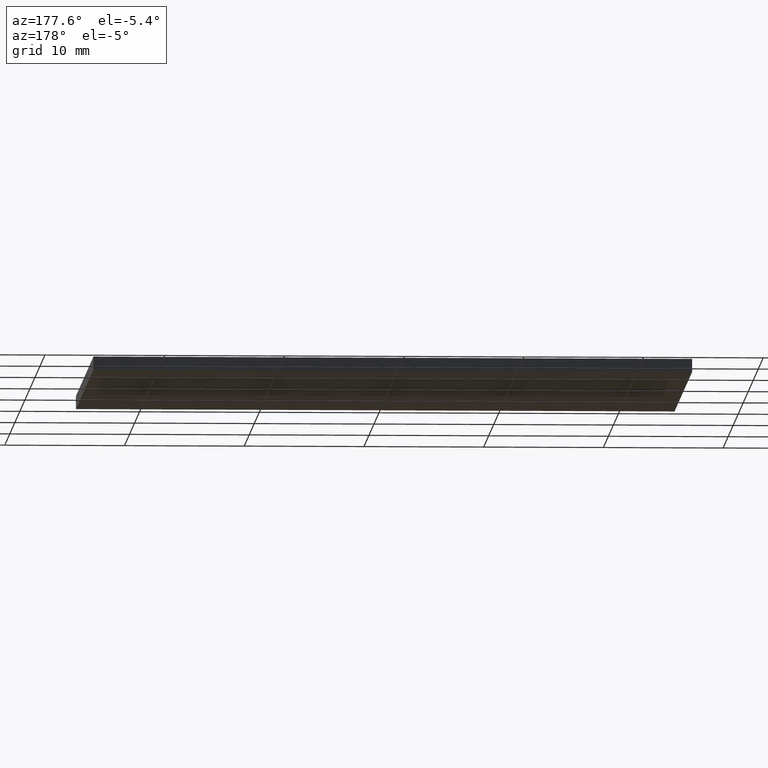
[diagram: clean part render]
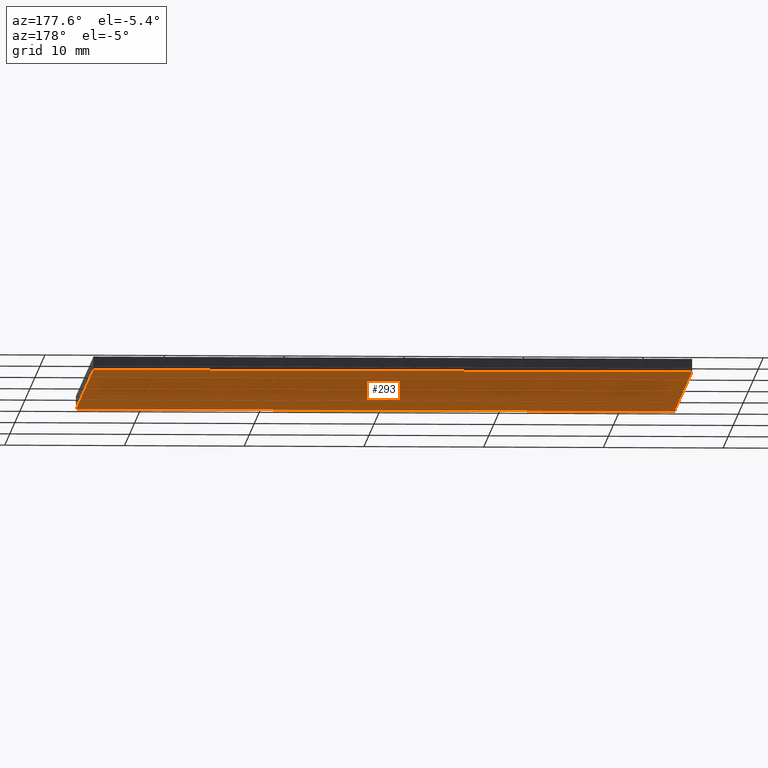
[diagram: same view with one face highlighted and labeled with its STEP entity id]
A machine part, auxiliary view. The second image highlights one B-rep face of the part: STEP entity #293.
In plain terms, the highlighted planar face has unit normal (0, 0, -1).
Its self-contained STEP definition (entity closure, byte-faithful):
#1 = DIRECTION ( 'NONE',  ( 0.0000000000000000000, 1.000000000000000000, 0.0000000000000000000 ) ) ;
#12 = CARTESIAN_POINT ( 'NONE',  ( -25.00000000000000400, -17.50000000000000000, 0.0000000000000000000 ) ) ;
#14 = VERTEX_POINT ( 'NONE', #274 ) ;
#30 = EDGE_CURVE ( 'NONE', #271, #263, #290, .T. ) ;
#41 = EDGE_CURVE ( 'NONE', #315, #271, #117, .T. ) ;
#84 = CARTESIAN_POINT ( 'NONE',  ( -25.00000000000000400, -17.50000000000000000, 0.0000000000000000000 ) ) ;
#86 = VECTOR ( 'NONE', #226, 1000.000000000000000 ) ;
#87 = LINE ( 'NONE', #84, #148 ) ;
#101 = ORIENTED_EDGE ( 'NONE', *, *, #30, .F. ) ;
#106 = ORIENTED_EDGE ( 'NONE', *, *, #133, .F. ) ;
#109 = CARTESIAN_POINT ( 'NONE',  ( 24.99999999999999600, -17.50000000000000000, 0.0000000000000000000 ) ) ;
#113 = PLANE ( 'NONE',  #270 ) ;
#117 = LINE ( 'NONE', #109, #168 ) ;
#132 = EDGE_LOOP ( 'NONE', ( #153, #303, #106, #101 ) ) ;
#133 = EDGE_CURVE ( 'NONE', #263, #14, #87, .T. ) ;
#148 = VECTOR ( 'NONE', #299, 1000.000000000000000 ) ;
#153 = ORIENTED_EDGE ( 'NONE', *, *, #41, .F. ) ;
#165 = DIRECTION ( 'NONE',  ( 0.0000000000000000000, 0.0000000000000000000, -1.000000000000000000 ) ) ;
#166 = FACE_OUTER_BOUND ( 'NONE', #132, .T. ) ;
#168 = VECTOR ( 'NONE', #1, 1000.000000000000000 ) ;
#174 = VECTOR ( 'NONE', #269, 1000.000000000000000 ) ;
#180 = EDGE_CURVE ( 'NONE', #14, #315, #186, .T. ) ;
#186 = LINE ( 'NONE', #12, #86 ) ;
#223 = CARTESIAN_POINT ( 'NONE',  ( 24.99999999999999600, 17.50000000000000000, 0.0000000000000000000 ) ) ;
#226 = DIRECTION ( 'NONE',  ( 1.000000000000000000, 0.0000000000000000000, 0.0000000000000000000 ) ) ;
#228 = CARTESIAN_POINT ( 'NONE',  ( -25.00000000000000400, 17.50000000000000000, 0.0000000000000000000 ) ) ;
#246 = DIRECTION ( 'NONE',  ( -1.000000000000000000, 0.0000000000000000000, -0.0000000000000000000 ) ) ;
#263 = VERTEX_POINT ( 'NONE', #228 ) ;
#269 = DIRECTION ( 'NONE',  ( -1.000000000000000000, -0.0000000000000000000, -0.0000000000000000000 ) ) ;
#270 = AXIS2_PLACEMENT_3D ( 'NONE', #305, #165, #246 ) ;
#271 = VERTEX_POINT ( 'NONE', #223 ) ;
#274 = CARTESIAN_POINT ( 'NONE',  ( -25.00000000000000400, -17.50000000000000000, 0.0000000000000000000 ) ) ;
#280 = CARTESIAN_POINT ( 'NONE',  ( 24.99999999999999600, -17.50000000000000000, 0.0000000000000000000 ) ) ;
#290 = LINE ( 'NONE', #296, #174 ) ;
#293 = ADVANCED_FACE ( 'NONE', ( #166 ), #113, .T. ) ;
#296 = CARTESIAN_POINT ( 'NONE',  ( -25.00000000000000400, 17.50000000000000000, 0.0000000000000000000 ) ) ;
#299 = DIRECTION ( 'NONE',  ( -0.0000000000000000000, -1.000000000000000000, -0.0000000000000000000 ) ) ;
#303 = ORIENTED_EDGE ( 'NONE', *, *, #180, .F. ) ;
#305 = CARTESIAN_POINT ( 'NONE',  ( 0.0000000000000000000, 0.0000000000000000000, 0.0000000000000000000 ) ) ;
#315 = VERTEX_POINT ( 'NONE', #280 ) ;